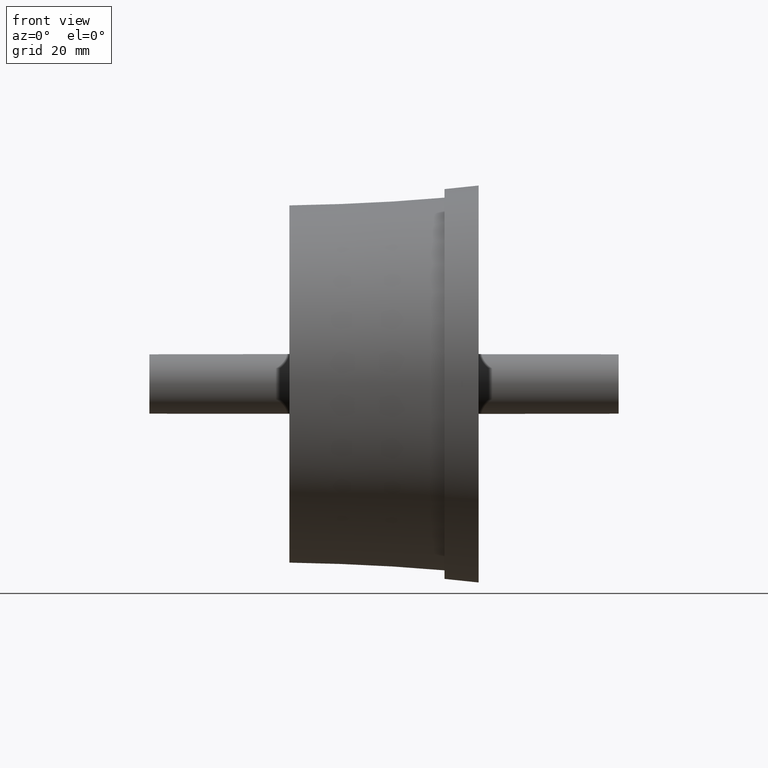
[diagram: clean part render]
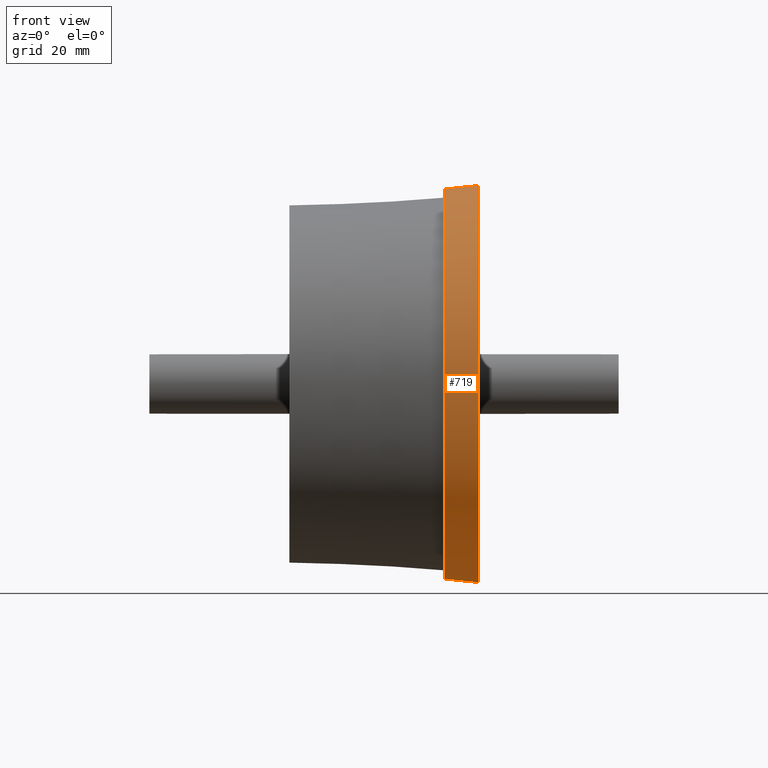
[diagram: same view with one face highlighted and labeled with its STEP entity id]
A machine part, front view. The second image highlights one B-rep face of the part: STEP entity #719.
In plain terms, the highlighted conical surface has half-angle 5.994 deg.
Its self-contained STEP definition (entity closure, byte-faithful):
#16=CONICAL_SURFACE('',#850,52.0275,5.99409294910843);
#111=FACE_BOUND('',#303,.T.);
#176=FACE_OUTER_BOUND('',#302,.T.);
#302=EDGE_LOOP('',(#622));
#303=EDGE_LOOP('',(#623));
#337=CIRCLE('',#778,52.5);
#369=CIRCLE('',#849,51.555);
#401=VERTEX_POINT('',#1199);
#433=VERTEX_POINT('',#1302);
#465=EDGE_CURVE('',#401,#401,#337,.T.);
#497=EDGE_CURVE('',#433,#433,#369,.T.);
#622=ORIENTED_EDGE('',*,*,#497,.T.);
#623=ORIENTED_EDGE('',*,*,#465,.F.);
#719=ADVANCED_FACE('',(#176,#111),#16,.T.);
#778=AXIS2_PLACEMENT_3D('',#1200,#964,#965);
#849=AXIS2_PLACEMENT_3D('',#1303,#1106,#1107);
#850=AXIS2_PLACEMENT_3D('',#1304,#1108,#1109);
#964=DIRECTION('center_axis',(1.,2.40506373542991E-32,0.));
#965=DIRECTION('ref_axis',(0.,0.,-1.));
#1106=DIRECTION('center_axis',(1.,2.40506373542991E-32,0.));
#1107=DIRECTION('ref_axis',(0.,0.,-1.));
#1108=DIRECTION('center_axis',(1.,2.40506373542991E-32,0.));
#1109=DIRECTION('ref_axis',(0.,1.,0.));
#1199=CARTESIAN_POINT('',(25.,52.5,0.));
#1200=CARTESIAN_POINT('Origin',(25.,1.20253186771496E-30,0.));
#1302=CARTESIAN_POINT('',(16.,51.555,0.));
#1303=CARTESIAN_POINT('Origin',(16.,9.86076131526265E-31,0.));
#1304=CARTESIAN_POINT('Origin',(20.5,1.09430399962061E-30,0.));